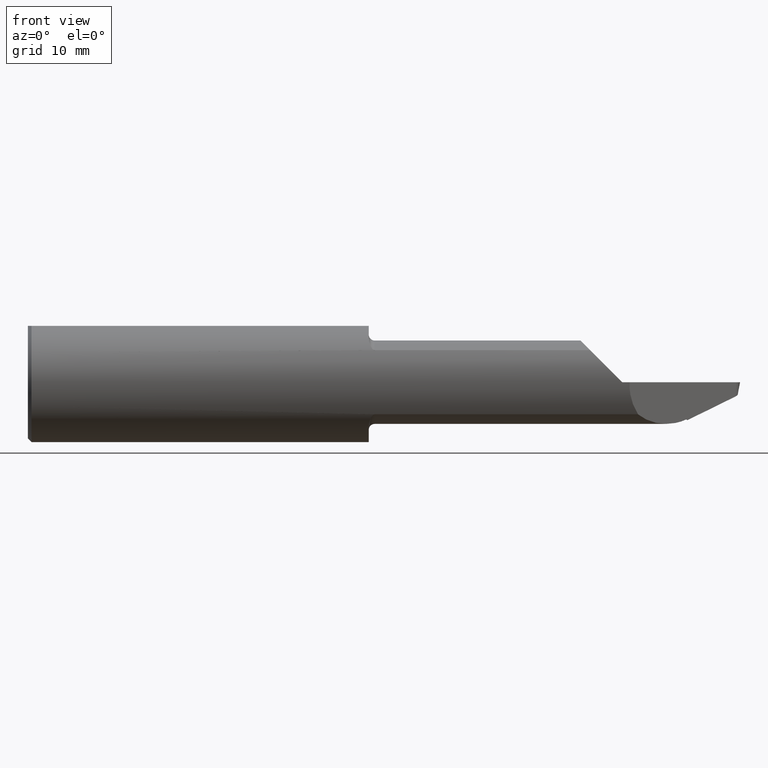
[diagram: clean part render]
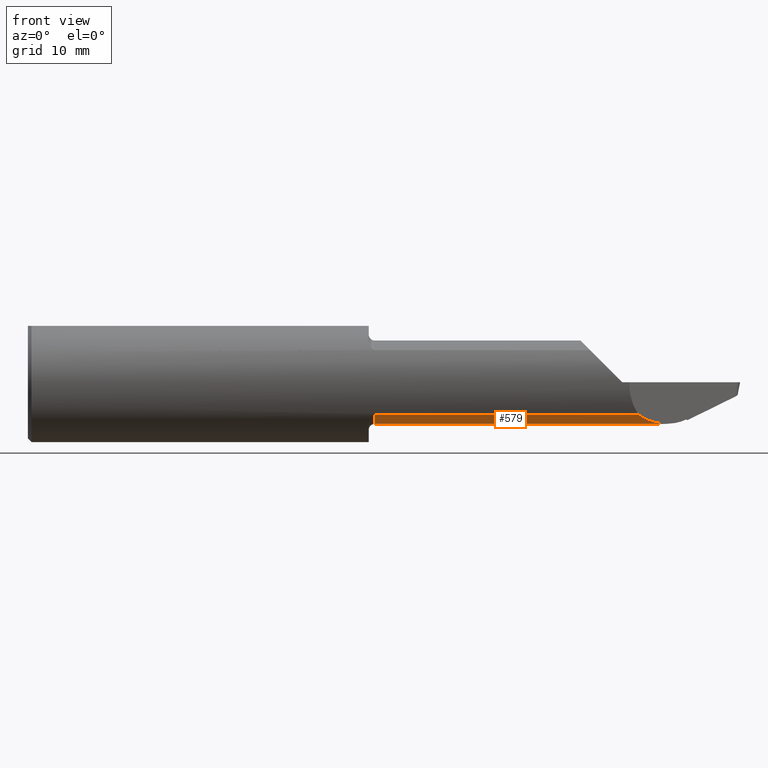
[diagram: same view with one face highlighted and labeled with its STEP entity id]
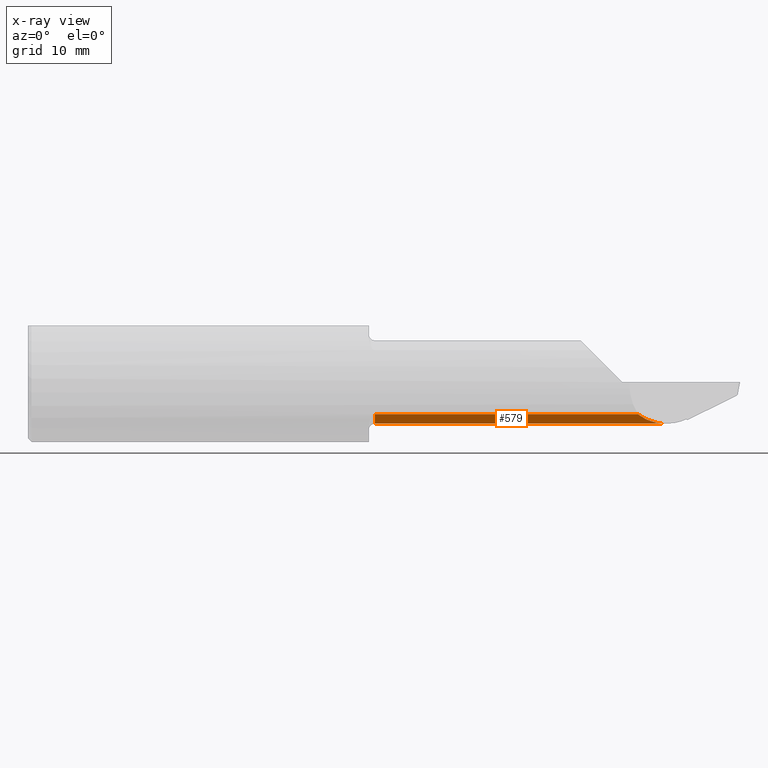
[diagram: x-ray of the same camera — body ghosted, the highlighted face saturated]
A machine part, front view. The second image highlights one B-rep face of the part: STEP entity #579.
The next image is the same camera in x-ray: the body ghosted, the highlighted face saturated — about 0% of this face is hidden behind the body in this view.
In plain terms, the highlighted cylindrical surface (partial cylindrical patch) has radius 4.4196 mm, axis along (-1, -0, -0).
Its self-contained STEP definition (entity closure, byte-faithful):
#65 = LINE ( 'NONE', #324, #593 ) ;
#74 = CIRCLE ( 'NONE', #517, 0.1739999999999987390 ) ;
#99 = CARTESIAN_POINT ( 'NONE',  ( 2.545554631339530971, -0.2109115923885839516, -0.1339452227446421839 ) ) ;
#100 = ORIENTED_EDGE ( 'NONE', *, *, #375, .F. ) ;
#118 = VERTEX_POINT ( 'NONE', #129 ) ;
#129 = CARTESIAN_POINT ( 'NONE',  ( 1.446999999999999842, -0.2109115923885835353, -0.1339452227446417121 ) ) ;
#199 = CARTESIAN_POINT ( 'NONE',  ( 2.662602659211939837, -0.09984999999999999432, -0.1739999999999993496 ) ) ;
#226 = ORIENTED_EDGE ( 'NONE', *, *, #817, .F. ) ;
#266 = CARTESIAN_POINT ( 'NONE',  ( 2.662602659211939837, -0.09984999999999999432, -0.1739999999999993496 ) ) ;
#290 = CARTESIAN_POINT ( 'NONE',  ( 2.097104927754681825, -0.2109115923885839516, -0.1339452227446421839 ) ) ;
#313 = VERTEX_POINT ( 'NONE', #315 ) ;
#315 = CARTESIAN_POINT ( 'NONE',  ( 1.446999999999999842, -0.09984999999999999432, -0.1739999999999987390 ) ) ;
#324 = CARTESIAN_POINT ( 'NONE',  ( 1.421999999999999931, -0.09984999999999999432, -0.1739999999999993496 ) ) ;
#329 = DIRECTION ( 'NONE',  ( -1.000000000000000000, -0.000000000000000000, -0.000000000000000000 ) ) ;
#349 = DIRECTION ( 'NONE',  ( 0.000000000000000000, 0.000000000000000000, 1.000000000000000000 ) ) ;
#355 = CARTESIAN_POINT ( 'NONE',  ( 1.421999999999999931, -0.09985000000000000819, 0.000000000000000000 ) ) ;
#375 = EDGE_CURVE ( 'NONE', #313, #118, #74, .T. ) ;
#382 = VERTEX_POINT ( 'NONE', #199 ) ;
#384 = CARTESIAN_POINT ( 'NONE',  ( 2.578040489233798471, -0.1793692571805432789, -0.1600987644990803094 ) ) ;
#394 = CARTESIAN_POINT ( 'NONE',  ( 1.446999999999999842, -0.09985000000000000819, 0.000000000000000000 ) ) ;
#418 = FACE_OUTER_BOUND ( 'NONE', #620, .T. ) ;
#434 = CARTESIAN_POINT ( 'NONE',  ( 2.618662664960786923, -0.1408247075240024737, -0.1739999999999994051 ) ) ;
#443 = VECTOR ( 'NONE', #619, 39.37007874015748143 ) ;
#472 = ORIENTED_EDGE ( 'NONE', *, *, #821, .F. ) ;
#517 = AXIS2_PLACEMENT_3D ( 'NONE', #394, #329, #655 ) ;
#558 = LINE ( 'NONE', #290, #443 ) ;
#579 = ADVANCED_FACE ( 'NONE', ( #418 ), #679, .T. ) ;
#593 = VECTOR ( 'NONE', #777, 39.37007874015748143 ) ;
#619 = DIRECTION ( 'NONE',  ( -1.000000000000000000, -0.000000000000000000, -0.000000000000000000 ) ) ;
#620 = EDGE_LOOP ( 'NONE', ( #472, #226, #799, #100 ) ) ;
#623 = DIRECTION ( 'NONE',  ( -1.000000000000000000, -0.000000000000000000, -0.000000000000000000 ) ) ;
#655 = DIRECTION ( 'NONE',  ( 0.000000000000000000, 0.000000000000000000, 1.000000000000000000 ) ) ;
#664 = EDGE_CURVE ( 'NONE', #724, #118, #558, .T. ) ;
#679 = CYLINDRICAL_SURFACE ( 'NONE', #745, 0.1739999999999993496 ) ;
#716 = CARTESIAN_POINT ( 'NONE',  ( 2.545554631339530971, -0.2109115923885839516, -0.1339452227446421839 ) ) ;
#724 = VERTEX_POINT ( 'NONE', #99 ) ;
#745 = AXIS2_PLACEMENT_3D ( 'NONE', #355, #623, #349 ) ;
#777 = DIRECTION ( 'NONE',  ( -1.000000000000000000, -0.000000000000000000, -0.000000000000000000 ) ) ;
#785 =( BOUNDED_CURVE ( )  B_SPLINE_CURVE ( 3, ( #716, #384, #434, #266 ),
 .UNSPECIFIED., .F., .F. ) 
 B_SPLINE_CURVE_WITH_KNOTS ( ( 4, 4 ),
 ( 0.8308160677390028503, 1.523084436873744618 ),
 .UNSPECIFIED. ) 
 CURVE ( )  GEOMETRIC_REPRESENTATION_ITEM ( )  RATIONAL_B_SPLINE_CURVE ( ( 1.000000000000000000, 0.9604608466326332028, 0.9604608466326332028, 1.000000000000000000 ) ) 
 REPRESENTATION_ITEM ( '' )  );
#799 = ORIENTED_EDGE ( 'NONE', *, *, #664, .T. ) ;
#817 = EDGE_CURVE ( 'NONE', #724, #382, #785, .T. ) ;
#821 = EDGE_CURVE ( 'NONE', #382, #313, #65, .T. ) ;